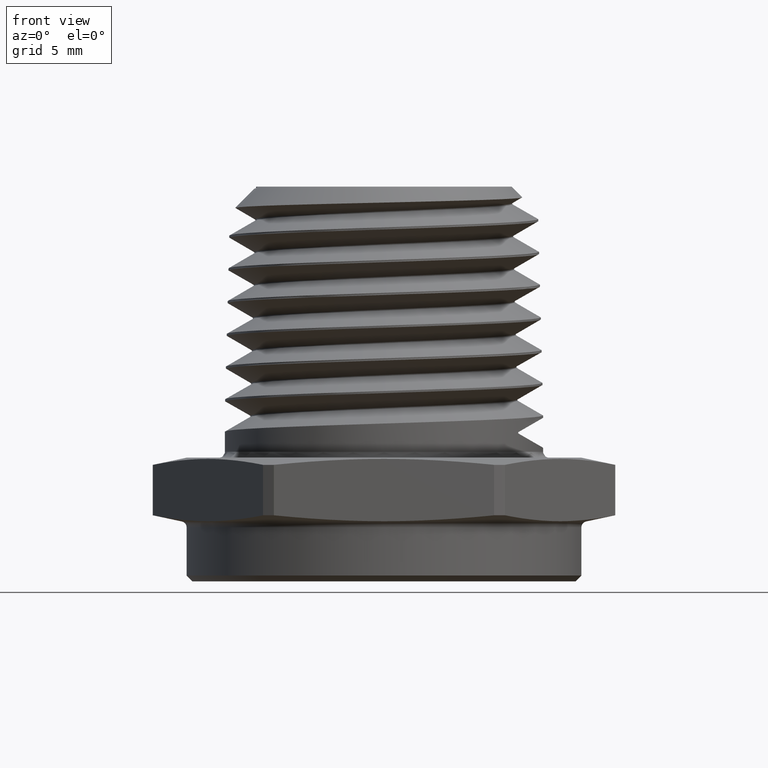
[diagram: clean part render]
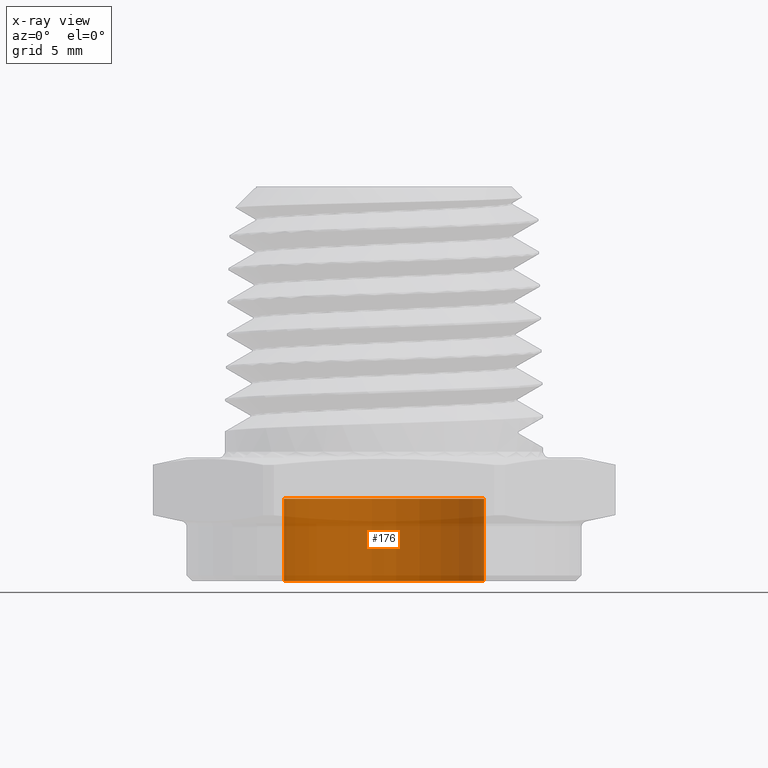
[diagram: x-ray — body ghosted, one internal face saturated and labeled with its STEP entity id]
A machine part, front view, then the same camera in x-ray: the body is ghosted and one INTERNAL B-rep face — a face not visible from any outside direction — is saturated and labeled: STEP entity #176.
In plain terms, the highlighted cylindrical surface (partial cylindrical patch) has radius 4.318 mm, axis along (0, 0, 1).
Its self-contained STEP definition (entity closure, byte-faithful):
#50 = EDGE_CURVE ( 'NONE', #631, #636, #664, .T. ) ;
#51 = EDGE_CURVE ( 'NONE', #638, #631, #661, .T. ) ;
#53 = EDGE_CURVE ( 'NONE', #638, #637, #667, .T. ) ;
#54 = EDGE_CURVE ( 'NONE', #637, #636, #666, .T. ) ;
#125 = CARTESIAN_POINT ( 'NONE',  ( -0.1699999999999999800, 0.0000000000000000000, 0.1400000000000000100 ) ) ;
#156 = DIRECTION ( 'NONE',  ( -0.0000000000000000000, -0.0000000000000000000, -1.000000000000000000 ) ) ;
#157 = CARTESIAN_POINT ( 'NONE',  ( 0.1699999999999999800, 2.081899558550500500E-017, 0.1400000000000000100 ) ) ;
#158 = DIRECTION ( 'NONE',  ( -0.0000000000000000000, -0.0000000000000000000, -1.000000000000000000 ) ) ;
#159 = CARTESIAN_POINT ( 'NONE',  ( 0.0000000000000000000, 0.0000000000000000000, 0.1400000000000000100 ) ) ;
#160 = DIRECTION ( 'NONE',  ( 0.0000000000000000000, 0.0000000000000000000, 1.000000000000000000 ) ) ;
#161 = DIRECTION ( 'NONE',  ( 1.000000000000000000, 0.0000000000000000000, 0.0000000000000000000 ) ) ;
#167 = CARTESIAN_POINT ( 'NONE',  ( 0.0000000000000000000, 0.0000000000000000000, 0.0000000000000000000 ) ) ;
#168 = DIRECTION ( 'NONE',  ( 0.0000000000000000000, 0.0000000000000000000, 1.000000000000000000 ) ) ;
#169 = DIRECTION ( 'NONE',  ( 1.000000000000000000, 0.0000000000000000000, 0.0000000000000000000 ) ) ;
#176 = ADVANCED_FACE ( 'NONE', ( #741 ), #738, .T. ) ;
#314 = AXIS2_PLACEMENT_3D ( 'NONE', #159, #160, #161 ) ;
#316 = AXIS2_PLACEMENT_3D ( 'NONE', #167, #168, #169 ) ;
#501 = EDGE_LOOP ( 'NONE', ( #576, #574, #577, #578 ) ) ;
#574 = ORIENTED_EDGE ( 'NONE', *, *, #53, .T. ) ;
#576 = ORIENTED_EDGE ( 'NONE', *, *, #51, .F. ) ;
#577 = ORIENTED_EDGE ( 'NONE', *, *, #54, .T. ) ;
#578 = ORIENTED_EDGE ( 'NONE', *, *, #50, .F. ) ;
#631 = VERTEX_POINT ( 'NONE', #4941 ) ;
#636 = VERTEX_POINT ( 'NONE', #4949 ) ;
#637 = VERTEX_POINT ( 'NONE', #4950 ) ;
#638 = VERTEX_POINT ( 'NONE', #4951 ) ;
#661 = CIRCLE ( 'NONE', #314, 0.1699999999999999800 ) ;
#663 = VECTOR ( 'NONE', #156, 39.37007874015748100 ) ;
#664 = LINE ( 'NONE', #125, #663 ) ;
#666 = CIRCLE ( 'NONE', #316, 0.1699999999999999800 ) ;
#667 = LINE ( 'NONE', #157, #669 ) ;
#669 = VECTOR ( 'NONE', #158, 39.37007874015748100 ) ;
#738 = CYLINDRICAL_SURFACE ( 'NONE', #1681, 0.1699999999999999800 ) ;
#741 = FACE_OUTER_BOUND ( 'NONE', #501, .T. ) ;
#1574 = DIRECTION ( 'NONE',  ( -1.000000000000000000, 0.0000000000000000000, 0.0000000000000000000 ) ) ;
#1575 = CARTESIAN_POINT ( 'NONE',  ( 0.0000000000000000000, 0.0000000000000000000, 0.1400000000000000100 ) ) ;
#1576 = DIRECTION ( 'NONE',  ( -0.0000000000000000000, -0.0000000000000000000, -1.000000000000000000 ) ) ;
#1681 = AXIS2_PLACEMENT_3D ( 'NONE', #1575, #1576, #1574 ) ;
#4941 = CARTESIAN_POINT ( 'NONE',  ( -0.1699999999999999800, 0.0000000000000000000, 0.1400000000000000100 ) ) ;
#4949 = CARTESIAN_POINT ( 'NONE',  ( -0.1699999999999999800, 0.0000000000000000000, 0.0000000000000000000 ) ) ;
#4950 = CARTESIAN_POINT ( 'NONE',  ( 0.1699999999999999800, 2.081899558550500500E-017, 0.0000000000000000000 ) ) ;
#4951 = CARTESIAN_POINT ( 'NONE',  ( 0.1699999999999999800, 2.081899558550500500E-017, 0.1400000000000000100 ) ) ;